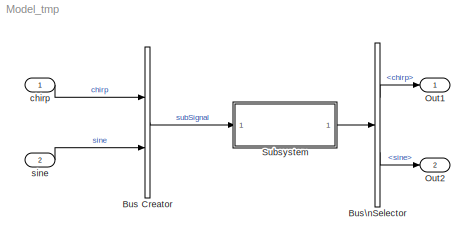
MODEL Model_tmp
KIND model
CONFIG PreLoadFcn = % Bus object: subBus \nclear elems;\nelems(1) = Simulink.BusElement;\nelems(1).Name = 'chirp';\nelems(1).Dimensions = 2;\nelems(1).DimensionsMode = 'Fixed';\nelems(1).DataType = 'double';\nelems(1).SampleTime = -1;\nelems(1).Complexity = 'real';\nelems(1).Min = [];\nelems(1).Max = [];\nelems(1).DocUnits = '';\nelems(1).Description = '';\n\nelems(2) = Simulink.BusElement;\nelems(2).Name = 'sine';\n...<+454ch>
BLOCK [BusCreator] Bus Creator
  AttributesFormatString = SubBus
  DisplayOption = bar
  InheritFromInputs = off
  Inputs = 2
  NonVirtualBus = on
  OutDataTypeStr = Bus: subBus
  Ports = [2, 1]
  SID = 13
BLOCK [BusSelector] Bus\nSelector
  OutputSignals = chirp,sine
  Ports = [1, 2]
  SID = 14
BLOCK [Outport] Out1
  IconDisplay = Port number
  SID = 2
  SampleTime = 0
  SamplingMode = Sample based
  SignalType = real
BLOCK [Outport] Out2
  IconDisplay = Port number
  Port = 2
  SID = 15
  SampleTime = 0
  SamplingMode = Sample based
  SignalType = real
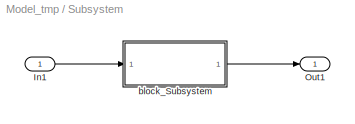
BLOCK [SubSystem] Subsystem
  Ports = [1, 1]
  RequestExecContextInheritance = off
  SID = 3
  TreatAsAtomicUnit = on
  Variant = off
BLOCK [Inport] Subsystem/In1
  IconDisplay = Port number
  OutDataTypeStr = Bus: subBus
  SID = 4
BLOCK [Outport] Subsystem/Out1
  IconDisplay = Port number
  OutDataTypeStr = Bus: subBus2
  SID = 5
BLOCK [ModelReference] Subsystem/block_Subsystem
  CopyOfModelName = Model_ref.mdl
  ModelNameDialog = Model_ref.mdl
  ModelReferenceVersion = 1.19
  Ports = [1, 1]
  SID = 10
  Variant = off
BLOCK [Inport] chirp
  IconDisplay = Port number
  SID = 11
BLOCK [Inport] sine
  IconDisplay = Port number
  Port = 2
  SID = 12
LINE Bus Creator:1 -> Subsystem:1
LINE Bus\nSelector:1 -> Out1:1
LINE Bus\nSelector:2 -> Out2:1
LINE Subsystem/In1:1 -> Subsystem/block_Subsystem:1
LINE Subsystem/block_Subsystem:1 -> Subsystem/Out1:1
LINE Subsystem:1 -> Bus\nSelector:1
LINE chirp:1 -> Bus Creator:1
LINE sine:1 -> Bus Creator:2
